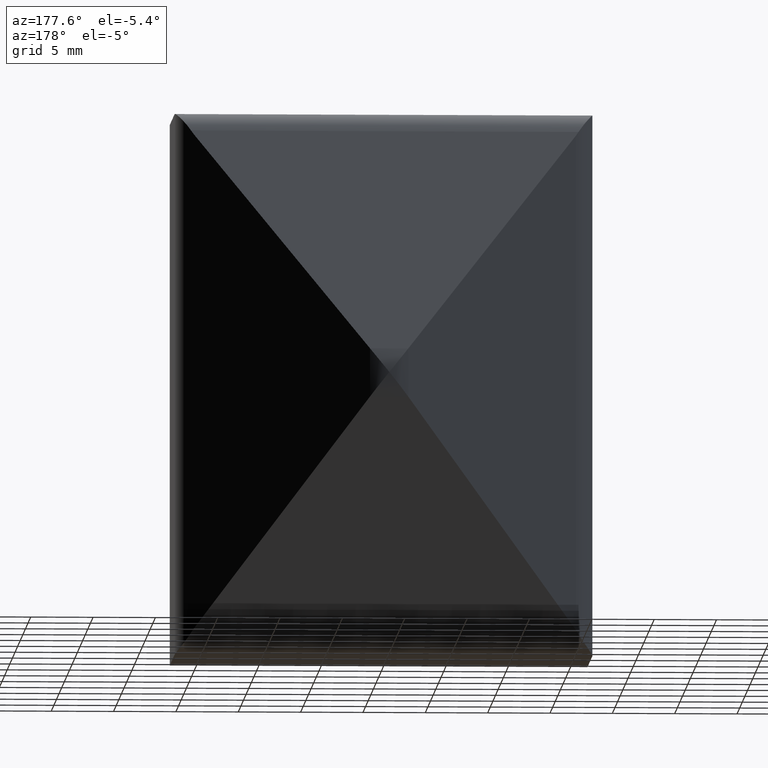
[diagram: clean part render]
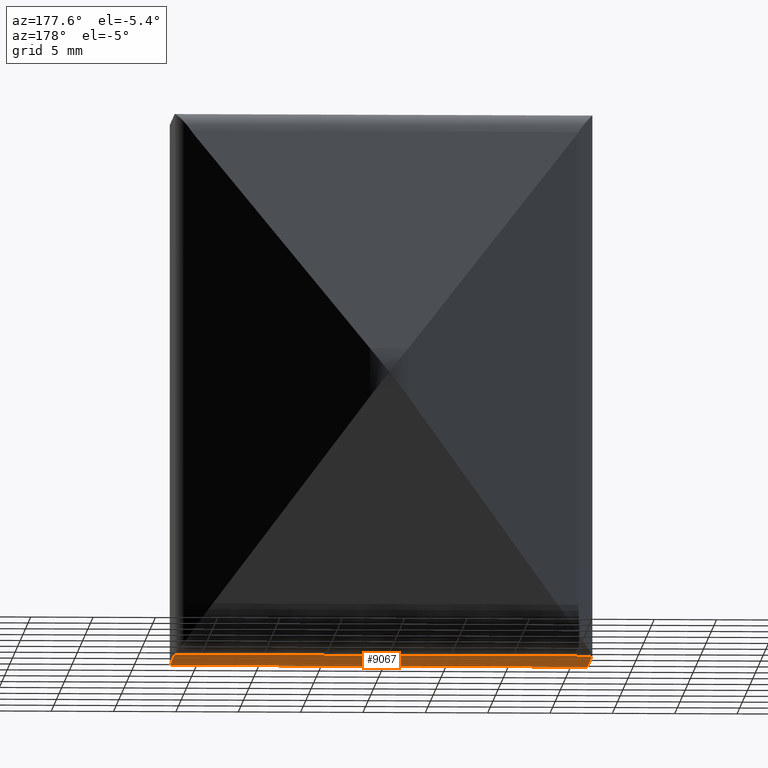
[diagram: same view with one face highlighted and labeled with its STEP entity id]
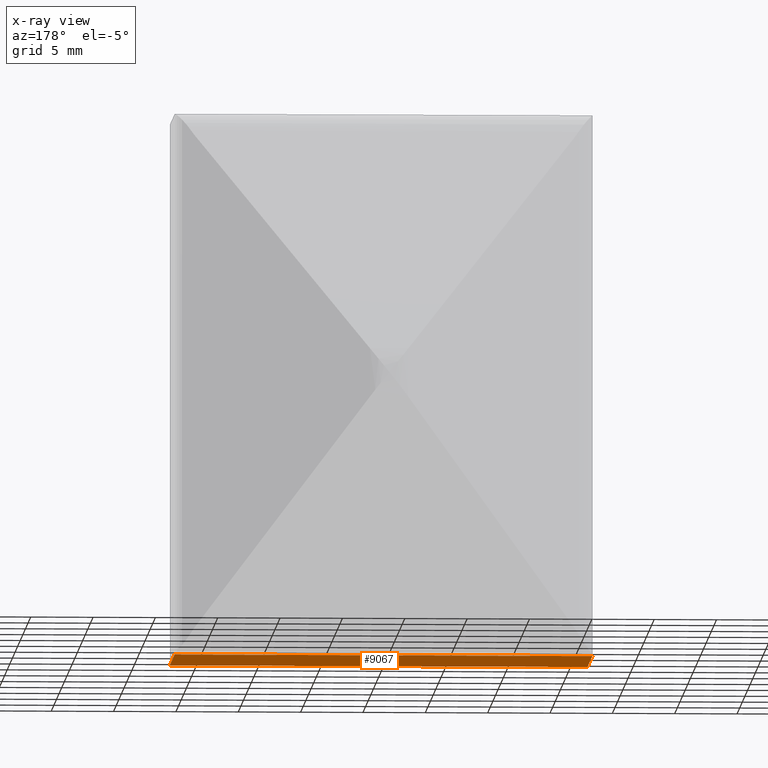
[diagram: x-ray of the same camera — body ghosted, the highlighted face saturated]
A machine part, auxiliary view. The second image highlights one B-rep face of the part: STEP entity #9067.
The next image is the same camera in x-ray: the body ghosted, the highlighted face saturated — about 0% of this face is hidden behind the body in this view.
In plain terms, the highlighted planar face has unit normal (0, 0, 1).
Its self-contained STEP definition (entity closure, byte-faithful):
#448 = CARTESIAN_POINT ( 'NONE',  ( -13.74999999999998934, 9.296493103079965792, -21.75000000000000000 ) ) ;
#1095 = LINE ( 'NONE', #16395, #3199 ) ;
#1253 = CARTESIAN_POINT ( 'NONE',  ( -16.74999999999998934, 3.076925082857724936E-15, -21.75000000000000000 ) ) ;
#1313 = LINE ( 'NONE', #7127, #15303 ) ;
#1717 = DIRECTION ( 'NONE',  ( -0.000000000000000000, -1.000000000000000000, -0.000000000000000000 ) ) ;
#2675 = DIRECTION ( 'NONE',  ( -1.865997701221428019E-15, 1.000000000000000000, -0.000000000000000000 ) ) ;
#2841 = EDGE_CURVE ( 'NONE', #4798, #6085, #17188, .T. ) ;
#3199 = VECTOR ( 'NONE', #2675, 1000.000000000000000 ) ;
#4336 = DIRECTION ( 'NONE',  ( 1.000000000000000000, 0.000000000000000000, -0.000000000000000000 ) ) ;
#4798 = VERTEX_POINT ( 'NONE', #5701 ) ;
#5654 = FACE_OUTER_BOUND ( 'NONE', #15133, .T. ) ;
#5701 = CARTESIAN_POINT ( 'NONE',  ( -16.74999999999998934, 3.076925082857724936E-15, -21.75000000000000000 ) ) ;
#6085 = VERTEX_POINT ( 'NONE', #14028 ) ;
#6507 = LINE ( 'NONE', #14858, #7984 ) ;
#6700 = ORIENTED_EDGE ( 'NONE', *, *, #8625, .F. ) ;
#7084 = PLANE ( 'NONE',  #15875 ) ;
#7127 = CARTESIAN_POINT ( 'NONE',  ( -16.74999999999998934, 3.076925082857724936E-15, -21.75000000000000000 ) ) ;
#7984 = VECTOR ( 'NONE', #17541, 1000.000000000000000 ) ;
#8625 = EDGE_CURVE ( 'NONE', #13666, #11169, #6507, .T. ) ;
#9067 = ADVANCED_FACE ( 'NONE', ( #5654 ), #7084, .F. ) ;
#9538 = VECTOR ( 'NONE', #10675, 1000.000000000000000 ) ;
#10512 = ORIENTED_EDGE ( 'NONE', *, *, #2841, .F. ) ;
#10675 = DIRECTION ( 'NONE',  ( 1.000000000000000000, 0.000000000000000000, 0.000000000000000000 ) ) ;
#11169 = VERTEX_POINT ( 'NONE', #17280 ) ;
#11212 = DIRECTION ( 'NONE',  ( 0.000000000000000000, 0.000000000000000000, 1.000000000000000000 ) ) ;
#13666 = VERTEX_POINT ( 'NONE', #13733 ) ;
#13701 = ORIENTED_EDGE ( 'NONE', *, *, #15640, .F. ) ;
#13733 = CARTESIAN_POINT ( 'NONE',  ( 16.75000000000000000, 9.296493103079967568, -21.75000000000000000 ) ) ;
#13986 = ORIENTED_EDGE ( 'NONE', *, *, #14883, .F. ) ;
#14028 = CARTESIAN_POINT ( 'NONE',  ( 16.75000000000000711, 3.076925082857724936E-15, -21.75000000000000000 ) ) ;
#14858 = CARTESIAN_POINT ( 'NONE',  ( -26.75000000000000355, 9.296493103079908948, -21.75000000000000000 ) ) ;
#14883 = EDGE_CURVE ( 'NONE', #11169, #4798, #1313, .T. ) ;
#15133 = EDGE_LOOP ( 'NONE', ( #6700, #13701, #10512, #13986 ) ) ;
#15303 = VECTOR ( 'NONE', #1717, 1000.000000000000000 ) ;
#15640 = EDGE_CURVE ( 'NONE', #6085, #13666, #1095, .T. ) ;
#15875 = AXIS2_PLACEMENT_3D ( 'NONE', #448, #11212, #4336 ) ;
#16395 = CARTESIAN_POINT ( 'NONE',  ( 16.74999999999998934, 9.296493103079967568, -21.75000000000000000 ) ) ;
#17188 = LINE ( 'NONE', #1253, #9538 ) ;
#17280 = CARTESIAN_POINT ( 'NONE',  ( -16.74999999999998934, 9.296493103079923159, -21.75000000000000000 ) ) ;
#17541 = DIRECTION ( 'NONE',  ( -1.000000000000000000, -1.369541201499284725E-15, 0.000000000000000000 ) ) ;